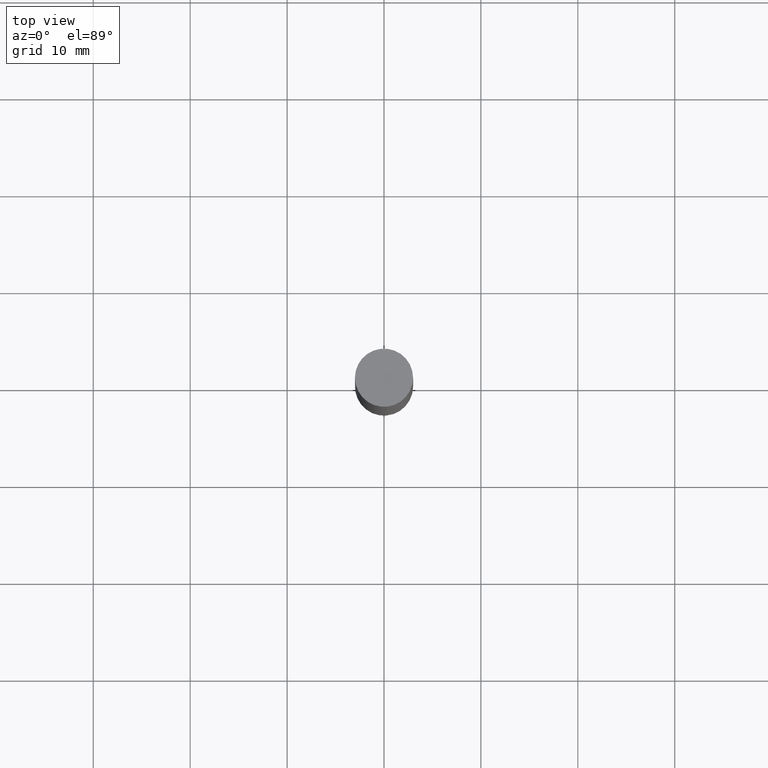
[diagram: clean part render]
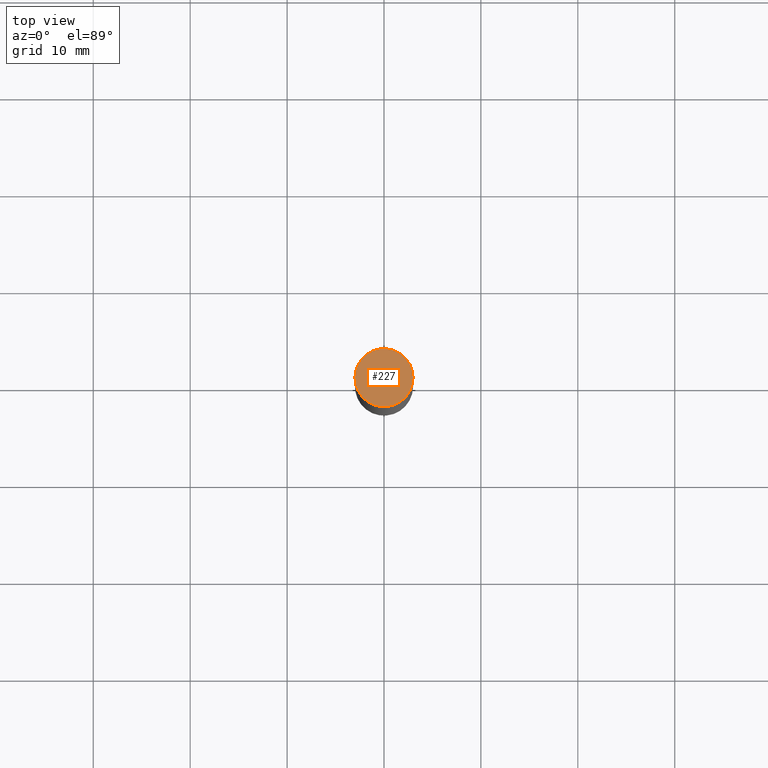
[diagram: same view with one face highlighted and labeled with its STEP entity id]
A machine part, top view. The second image highlights one B-rep face of the part: STEP entity #227.
In plain terms, the highlighted planar face has unit normal (0, 0, -1).
Its self-contained STEP definition (entity closure, byte-faithful):
#166=EDGE_CURVE('240[2]',#456,#456,#457,.F.);
#227=ADVANCED_FACE('240[2]',(#554),#555,.F.);
#456=VERTEX_POINT('',#835);
#457=CIRCLE('',#836,3.0);
#554=FACE_OUTER_BOUND('',#1008,.T.);
#555=PLANE('',#1009);
#835=CARTESIAN_POINT('',(3.0,0.0,75.0));
#836=AXIS2_PLACEMENT_3D('',#1452,#1453,#1454);
#1008=EDGE_LOOP('',(#1544));
#1009=AXIS2_PLACEMENT_3D('',#1545,#1546,#1547);
#1452=CARTESIAN_POINT('',(0.0,0.0,75.0));
#1453=DIRECTION('',(1.12481983699639E-032,1.83697019872103E-016,-1.0));
#1454=DIRECTION('',(-1.83697019872103E-016,-1.0,-1.83697019872103E-016));
#1544=ORIENTED_EDGE('',*,*,#166,.T.);
#1545=CARTESIAN_POINT('',(0.0,0.0,75.0));
#1546=DIRECTION('',(1.12481983699639E-032,1.83697019872103E-016,-1.0));
#1547=DIRECTION('',(-1.83697019872103E-016,-1.0,-1.83697019872103E-016));